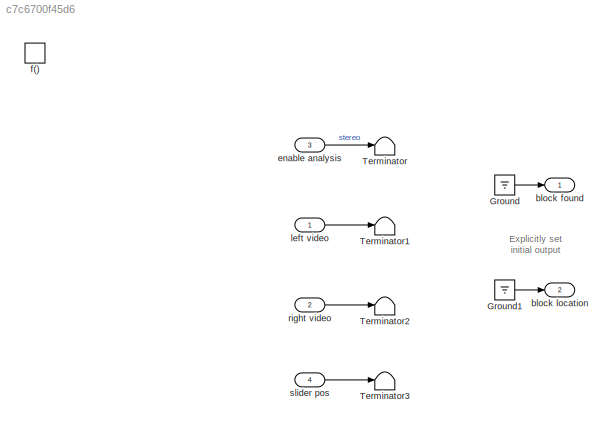
MODEL slx_c7c6700f45d6
KIND model
BLOCK [Ground] Ground
BLOCK [Ground] Ground1
BLOCK [Terminator] Terminator
BLOCK [Terminator] Terminator1
BLOCK [Terminator] Terminator2
BLOCK [Terminator] Terminator3
BLOCK [Outport] block found
  IconDisplay = Port number
  InitialOutput = 0
  OutDataTypeStr = uint16
  PortDimensions = 1
  SamplingMode = Sample based
  SignalType = real
BLOCK [Outport] block location
  IconDisplay = Port number
  InitialOutput = 0
  OutDataTypeStr = double
  Port = 2
  PortDimensions = 1
  SamplingMode = Sample based
  SignalType = real
BLOCK [Inport] enable analysis
  IconDisplay = Port number
  OutDataTypeStr = boolean
  Port = 3
  PortDimensions = 1
  SamplingMode = Sample based
  SignalType = real
BLOCK [TriggerPort] f()
  PortDimensions = 1
  Ports = []
  SampleTime = 0.1
  StatesWhenEnabling = held
  TriggerType = function-call
BLOCK [Inport] left video
  IconDisplay = Port number
  OutDataTypeStr = uint8
  PortDimensions = [400 240 3]
  SamplingMode = Sample based
  SignalType = real
BLOCK [Inport] right video
  IconDisplay = Port number
  OutDataTypeStr = uint8
  Port = 2
  PortDimensions = [400 240 3]
  SamplingMode = Sample based
  SignalType = real
BLOCK [Inport] slider pos
  IconDisplay = Port number
  OutDataTypeStr = double
  Port = 4
  PortDimensions = 1
  SamplingMode = Sample based
  SignalType = real
ANNOTATION (root): Explicitly set initial output
LINE Ground1:1 -> block location:1
LINE Ground:1 -> block found:1
LINE enable analysis:1 -> Terminator:1
LINE left video:1 -> Terminator1:1
LINE right video:1 -> Terminator2:1
LINE slider pos:1 -> Terminator3:1
